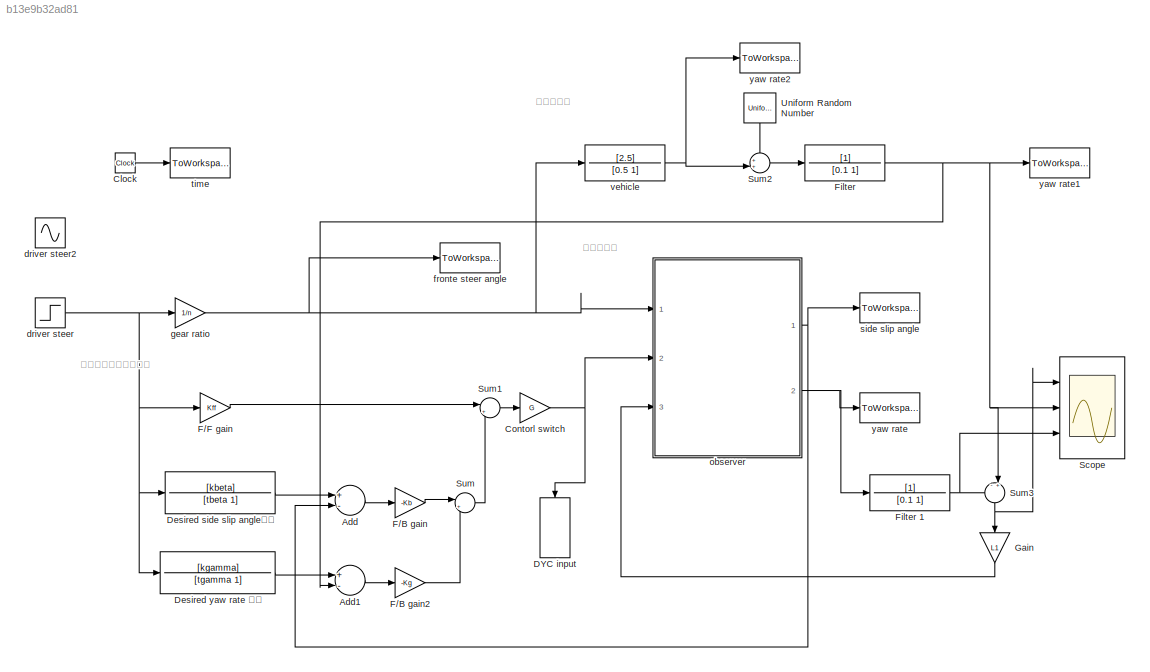
MODEL slx_b13e9b32ad81
KIND model
CONFIG AbsTol = auto
CONFIG EnableMultiTasking = off
CONFIG FixedStep = auto
CONFIG MaxStep = auto
CONFIG MinStep = auto
CONFIG RelTol = 1e-3
CONFIG SampleTimeConstraint = Unconstrained
CONFIG Solver = FixedStepAuto
CONFIG SolverName = FixedStepAuto
CONFIG StartTime = 0.0
CONFIG StopTime = 10
BLOCK [Sum] Add
  InputSameDT = off
  Inputs = +-
  OutDataTypeStr = Inherit: Inherit via internal rule
  Ports = [2, 1]
  SaturateOnIntegerOverflow = off
BLOCK [Sum] Add1
  InputSameDT = off
  Inputs = +-
  OutDataTypeStr = Inherit: Inherit via internal rule
  Ports = [2, 1]
  SaturateOnIntegerOverflow = off
BLOCK [Clock] Clock
  Decimation = 1/mydt
BLOCK [Gain] Contorl switch
  Gain = G
  OutDataTypeStr = Inherit: Inherit via internal rule
  ParamDataTypeStr = Inherit: Inherit via internal rule
  SaturateOnIntegerOverflow = off
BLOCK [ToWorkspace] DYC input
  FixptAsFi = on
  MaxDataPoints = inf
  Ports = [1]
  SampleTime = -1
  Save2DSignal = 3-D array (concatenate along third dimension)
  SaveFormat = Timeseries
  VariableName = M
BLOCK [TransferFcn] Desired side slip angle特性
  Denominator = [tbeta 1]
  Numerator = [kbeta]
BLOCK [TransferFcn] Desired yaw rate 特性
  Denominator = [tgamma 1]
  Numerator = [kgamma]
BLOCK [Gain] F//B gain
  Gain = -Kb
  OutDataTypeStr = Inherit: Inherit via internal rule
  ParamDataTypeStr = Inherit: Inherit via internal rule
  SaturateOnIntegerOverflow = off
BLOCK [Gain] F//B gain2
  Gain = -Kg
  OutDataTypeStr = Inherit: Inherit via internal rule
  ParamDataTypeStr = Inherit: Inherit via internal rule
  SaturateOnIntegerOverflow = off
BLOCK [Gain] F//F gain
  Gain = Kff
  OutDataTypeStr = Inherit: Inherit via internal rule
  ParamDataTypeStr = Inherit: Inherit via internal rule
  SaturateOnIntegerOverflow = off
BLOCK [TransferFcn] Filter 
  Denominator = [0.1 1]
BLOCK [TransferFcn] Filter 1
  Denominator = [0.1 1]
BLOCK [Gain] Gain
  Gain = L1
  OutDataTypeStr = Inherit: Inherit via internal rule
  ParamDataTypeStr = Inherit: Inherit via internal rule
  SaturateOnIntegerOverflow = off
BLOCK [Scope] Scope
  Floating = off
  NumInputPorts = 3
  Ports = [3]
  ScopeSpecificationString = Simulink.scopes.TimeScopeBlockCfg('CurrentConfiguration', extmgr.ConfigurationSet(extmgr.Configuration('Core','General UI',true),extmgr.Configuration('Core','Source UI',true),extmgr.Configuration('Sources','WiredSimulink',true),extmgr.Configuration('Visuals','Time Domain',true,'SerializedDisplays',{struct('MinYLimReal','-0.03181','MaxYLimReal','0.05567','YLabelReal','','MinYLimMag','0.00000','MaxY...<+1372ch>
BLOCK [Sum] Sum
  IconShape = round
  InputSameDT = off
  Inputs = |++
  OutDataTypeStr = Inherit: Inherit via internal rule
  Ports = [2, 1]
  SaturateOnIntegerOverflow = off
BLOCK [Sum] Sum1
  IconShape = round
  InputSameDT = off
  Inputs = |++
  OutDataTypeStr = Inherit: Inherit via internal rule
  Ports = [2, 1]
  SaturateOnIntegerOverflow = off
BLOCK [Sum] Sum2
  IconShape = round
  InputSameDT = off
  Inputs = ++|
  OutDataTypeStr = Inherit: Inherit via internal rule
  Ports = [2, 1]
  SaturateOnIntegerOverflow = off
BLOCK [Sum] Sum3
  IconShape = round
  InputSameDT = off
  Inputs = -+|
  OutDataTypeStr = Inherit: Inherit via internal rule
  Ports = [2, 1]
  SaturateOnIntegerOverflow = off
BLOCK [UniformRandomNumber] Uniform Random Number
  Maximum = 0.01
  Minimum = -0.01
  SampleTime = 0.1
BLOCK [Step] driver steer
  After = 15*pi/180
  SampleTime = mydt
BLOCK [Sin] driver steer2
  Ports = [0, 1]
  SampleTime = mydt
BLOCK [ToWorkspace] fronte steer angle
  FixptAsFi = on
  MaxDataPoints = inf
  Ports = [1]
  SampleTime = -1
  Save2DSignal = 3-D array (concatenate along third dimension)
  SaveFormat = Timeseries
  VariableName = deltaf
BLOCK [Gain] gear ratio
  Gain = 1/n
  OutDataTypeStr = Inherit: Inherit via internal rule
  ParamDataTypeStr = Inherit: Inherit via internal rule
  SaturateOnIntegerOverflow = off
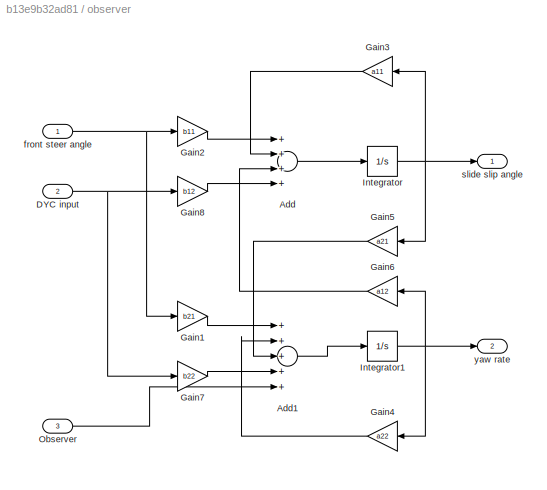
BLOCK [SubSystem] observer 
  Ports = [3, 2]
  RequestExecContextInheritance = off
BLOCK [Sum] observer /Add
  InputSameDT = off
  Inputs = ++++
  OutDataTypeStr = Inherit: Inherit via internal rule
  Ports = [4, 1]
  SaturateOnIntegerOverflow = off
BLOCK [Sum] observer /Add1
  InputSameDT = off
  Inputs = +++++
  OutDataTypeStr = Inherit: Inherit via internal rule
  Ports = [5, 1]
  SaturateOnIntegerOverflow = off
BLOCK [Inport] observer /DYC input
  IconDisplay = Port number
  Port = 2
BLOCK [Gain] observer /Gain1
  Gain = b21
  OutDataTypeStr = Inherit: Inherit via internal rule
  ParamDataTypeStr = Inherit: Inherit via internal rule
  SaturateOnIntegerOverflow = off
BLOCK [Gain] observer /Gain2
  Gain = b11
  OutDataTypeStr = Inherit: Inherit via internal rule
  ParamDataTypeStr = Inherit: Inherit via internal rule
  SaturateOnIntegerOverflow = off
BLOCK [Gain] observer /Gain3
  Gain = a11
  OutDataTypeStr = Inherit: Inherit via internal rule
  ParamDataTypeStr = Inherit: Inherit via internal rule
  SaturateOnIntegerOverflow = off
BLOCK [Gain] observer /Gain4
  Gain = a22
  OutDataTypeStr = Inherit: Inherit via internal rule
  ParamDataTypeStr = Inherit: Inherit via internal rule
  SaturateOnIntegerOverflow = off
BLOCK [Gain] observer /Gain5
  Gain = a21
  OutDataTypeStr = Inherit: Inherit via internal rule
  ParamDataTypeStr = Inherit: Inherit via internal rule
  SaturateOnIntegerOverflow = off
BLOCK [Gain] observer /Gain6
  Gain = a12
  OutDataTypeStr = Inherit: Inherit via internal rule
  ParamDataTypeStr = Inherit: Inherit via internal rule
  SaturateOnIntegerOverflow = off
BLOCK [Gain] observer /Gain7
  Gain = b22
  OutDataTypeStr = Inherit: Inherit via internal rule
  ParamDataTypeStr = Inherit: Inherit via internal rule
  SaturateOnIntegerOverflow = off
BLOCK [Gain] observer /Gain8
  Gain = b12
  OutDataTypeStr = Inherit: Inherit via internal rule
  ParamDataTypeStr = Inherit: Inherit via internal rule
  SaturateOnIntegerOverflow = off
BLOCK [Integrator] observer /Integrator
  Ports = [1, 1]
BLOCK [Integrator] observer /Integrator1
  Ports = [1, 1]
BLOCK [Inport] observer /Observer 
  IconDisplay = Port number
  Port = 3
BLOCK [Inport] observer /front steer angle
  IconDisplay = Port number
BLOCK [Outport] observer /slide slip angle
  IconDisplay = Port number
BLOCK [Outport] observer /yaw rate
  IconDisplay = Port number
  Port = 2
BLOCK [ToWorkspace] side slip angle
  FixptAsFi = on
  MaxDataPoints = inf
  Ports = [1]
  SampleTime = -1
  Save2DSignal = 3-D array (concatenate along third dimension)
  SaveFormat = Timeseries
  VariableName = beta
BLOCK [ToWorkspace] time
  FixptAsFi = on
  MaxDataPoints = inf
  Ports = [1]
  SampleTime = -1
  Save2DSignal = 3-D array (concatenate along third dimension)
  SaveFormat = Timeseries
  VariableName = t
BLOCK [TransferFcn] vehicle
  Denominator = [0.5 1]
  Numerator = [2.5]
BLOCK [ToWorkspace] yaw rate
  FixptAsFi = on
  MaxDataPoints = inf
  Ports = [1]
  SampleTime = -1
  Save2DSignal = 3-D array (concatenate along third dimension)
  SaveFormat = Timeseries
  VariableName = gamma
BLOCK [ToWorkspace] yaw rate1
  FixptAsFi = on
  MaxDataPoints = inf
  Ports = [1]
  SampleTime = -1
  Save2DSignal = 3-D array (concatenate along third dimension)
  SaveFormat = Timeseries
  VariableName = gamma1
BLOCK [ToWorkspace] yaw rate2
  FixptAsFi = on
  MaxDataPoints = inf
  Ports = [1]
  SampleTime = -1
  Save2DSignal = 3-D array (concatenate along third dimension)
  SaveFormat = Timeseries
  VariableName = gamma2
ANNOTATION (root): オブザーバ
ANNOTATION (root): ヨーモーメント制御器
ANNOTATION (root): 実プラント
LINE Add1:1 -> F//B gain2:1
LINE Add:1 -> F//B gain:1
LINE Clock:1 -> time:1
NET Contorl switch:1 -> DYC input:1, observer :2
LINE Desired side slip angle特性:1 -> Add:1
LINE Desired yaw rate 特性:1 -> Add1:1
LINE F//B gain2:1 -> Sum:2
LINE F//B gain:1 -> Sum:1
LINE F//F gain:1 -> Sum1:1
NET Filter 1:1 -> Scope:3, Sum3:1
NET Filter :1 -> Add1:2, Scope:2, Sum3:2, yaw rate1:1
LINE Gain:1 -> observer :3
LINE Sum1:1 -> Contorl switch:1
LINE Sum2:1 -> Filter :1
NET Sum3:1 -> Gain:1, Scope:1
LINE Sum:1 -> Sum1:2
LINE Uniform Random Number:1 -> Sum2:1
NET driver steer:1 -> Desired side slip angle特性:1, Desired yaw rate 特性:1, F//F gain:1, gear ratio:1
NET gear ratio:1 -> fronte steer angle:1, observer :1, vehicle:1
LINE observer /Add1:1 -> observer /Integrator1:1
LINE observer /Add:1 -> observer /Integrator:1
NET observer /DYC input:1 -> observer /Gain7:1, observer /Gain8:1
LINE observer /Gain1:1 -> observer /Add1:1
LINE observer /Gain2:1 -> observer /Add:1
LINE observer /Gain3:1 -> observer /Add:2
LINE observer /Gain4:1 -> observer /Add1:2
LINE observer /Gain5:1 -> observer /Add1:3
LINE observer /Gain6:1 -> observer /Add:3
LINE observer /Gain7:1 -> observer /Add1:4
LINE observer /Gain8:1 -> observer /Add:4
NET observer /Integrator1:1 -> observer /Gain4:1, observer /Gain6:1, observer /yaw rate:1
NET observer /Integrator:1 -> observer /Gain3:1, observer /Gain5:1, observer /slide slip angle:1
LINE observer /Observer :1 -> observer /Add1:5
NET observer /front steer angle:1 -> observer /Gain1:1, observer /Gain2:1
NET observer :1 -> Add:2, side slip angle:1
NET observer :2 -> Filter 1:1, yaw rate:1
NET vehicle:1 -> Sum2:2, yaw rate2:1
note: NET lines group one-source signal fan-out (src -> all destinations, sorted); 1:1 wires keep LINE
